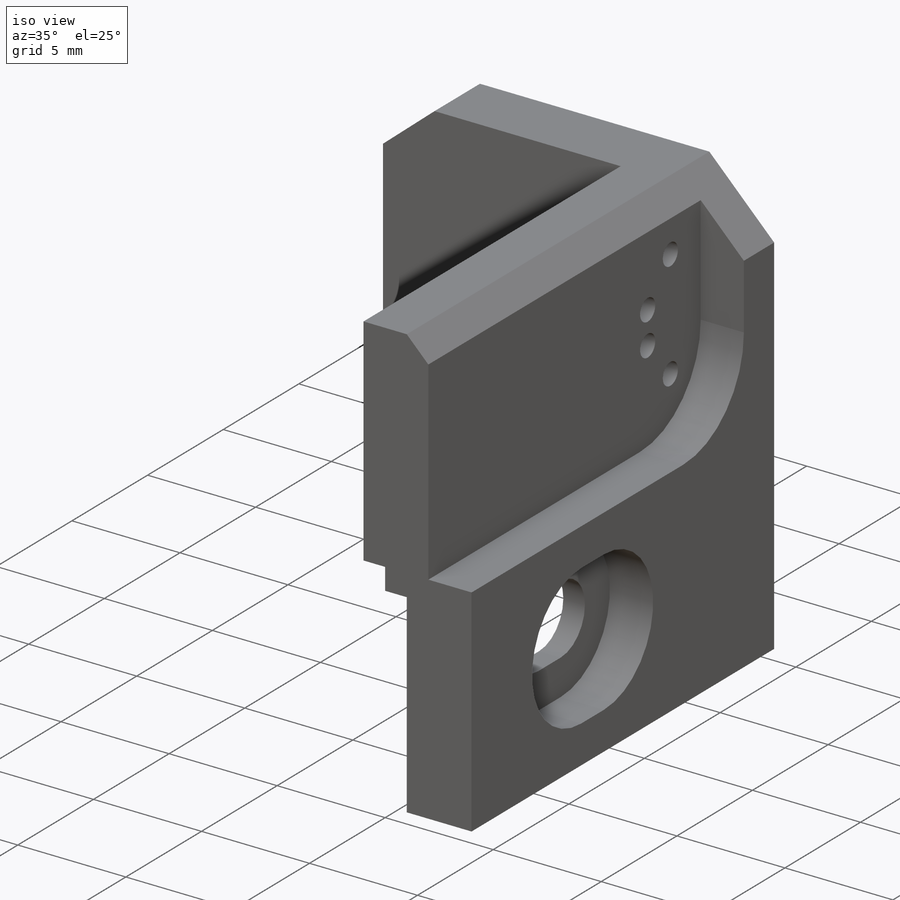
[diagram: iso view]
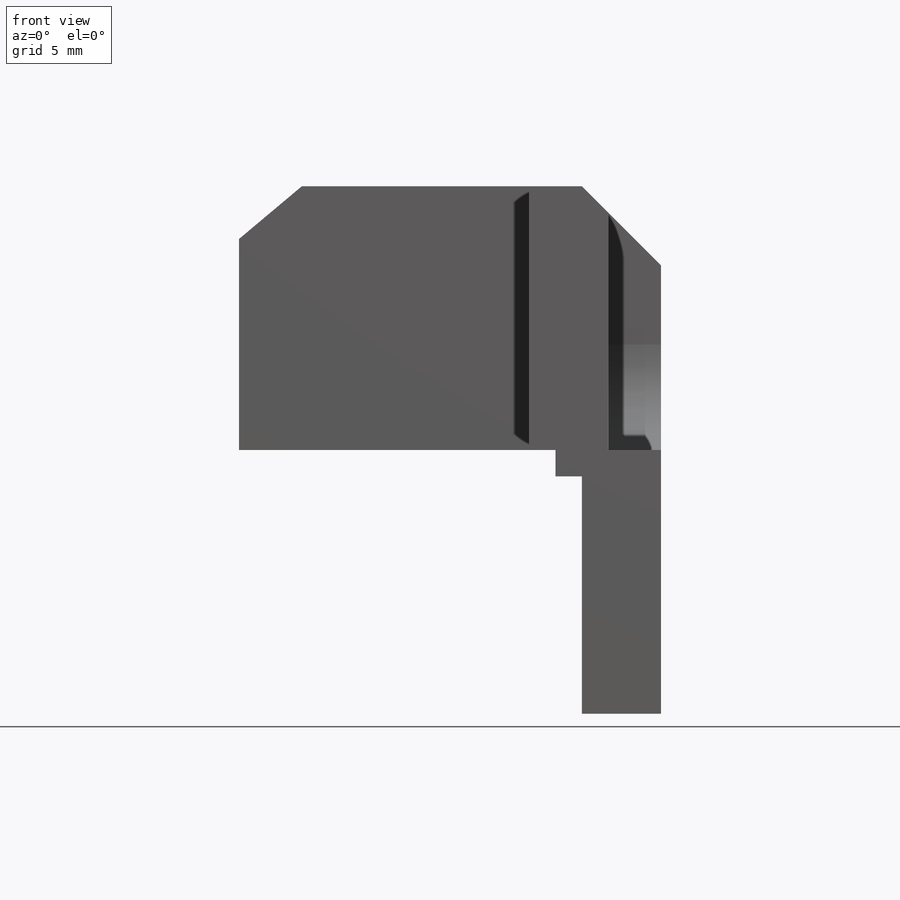
[diagram: front view]
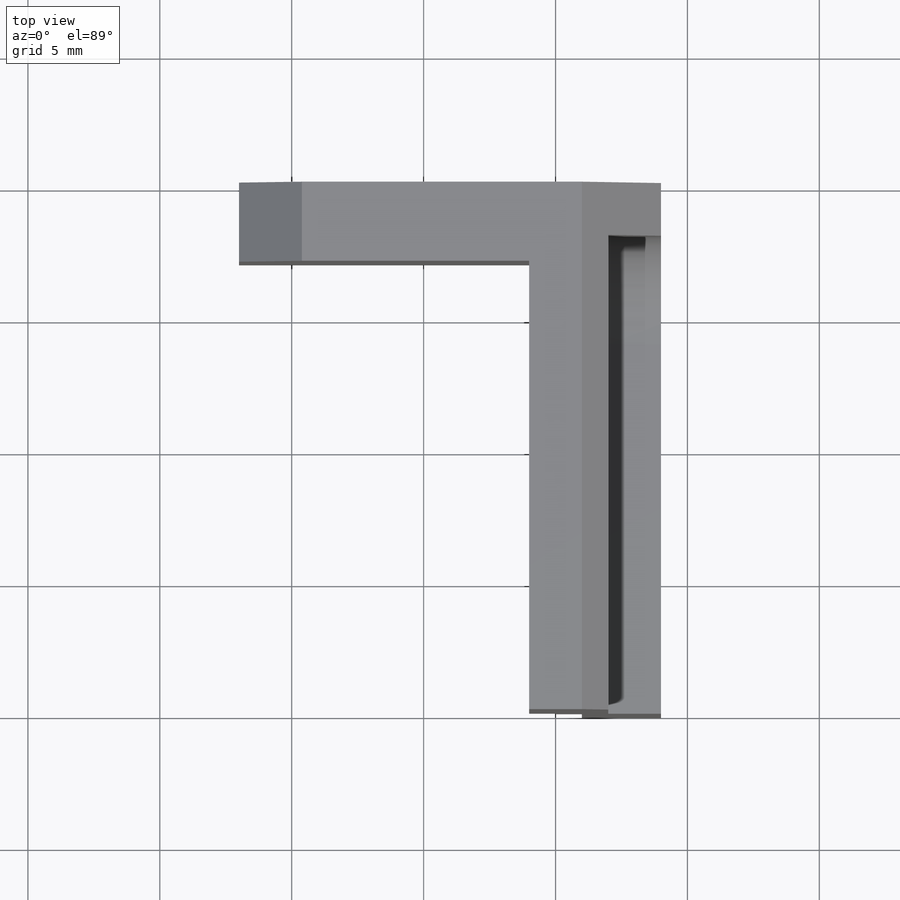
[diagram: top view]
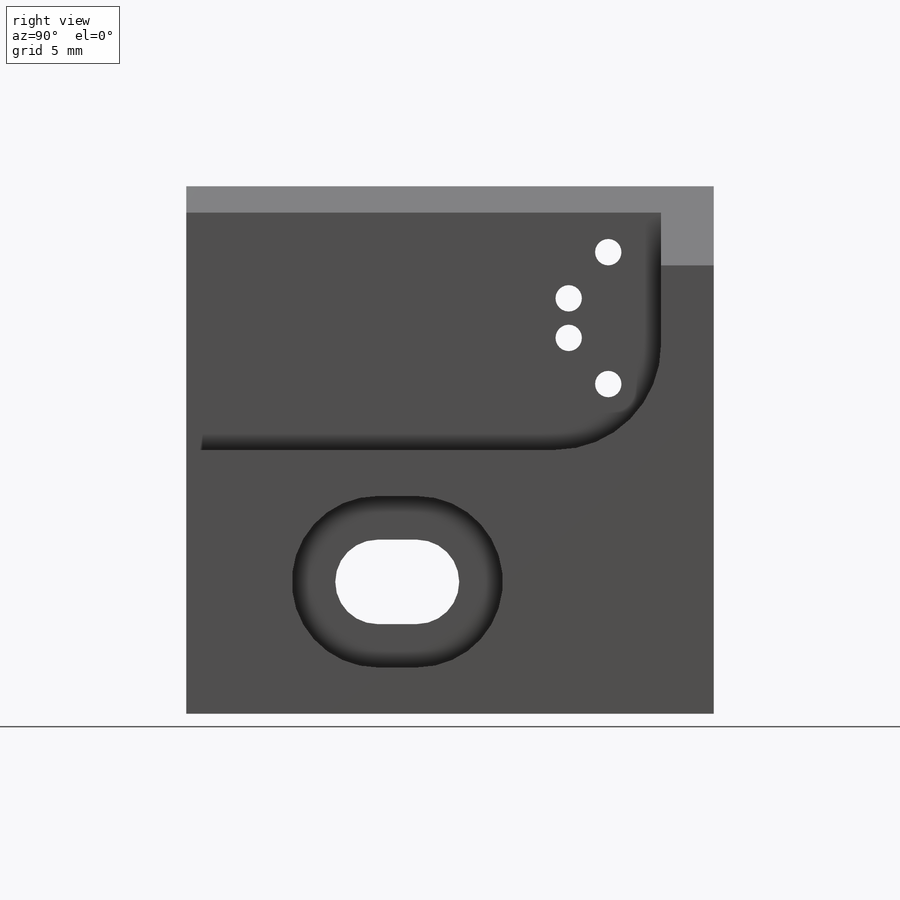
[diagram: right view]
SOLIDWORKS PART (.sldprt)
format: sldprt  version: not decoded by parser v0  size: 287,744 bytes
history: native  units: mm
features: sketch x6, cut_extrude x5, plane x3, chamfer x2, material x1, extrude x1 (+13 scaffold rows collapsed)
feature tree (31):
  scaffold x13  (default folders/planes/origin — collapsed)
  material  "2024-T3"
  plane  "Спереди"
  plane  "Сверху"
  plane  "Справа"
  sketch  "Эскиз1"  dims[D1=1.0mm D2=3.0mm D3=16.0mm D4=10.0mm D5=1.0mm D6=9.0mm]
  extrude  "Бобышка-Вытянуть1"  Depth=20mm
  sketch  "Эскиз2"  dims[D1=3.0mm D2=2.0mm]
  cut_extrude  "Вырез-Вытянуть1"  Depth=2mm
  sketch  "Эскиз3"  dims[c1.D2=1.6mm c1.D3=1.6mm c1.D4=1.6mm c1.D1=3.2mm c2.D2=0.2mm c2.D3=~0.212315mm c3.D3=~0.644165mm c4.D3=~0.202772mm c4.D2=4.0mm c5.D3=9.0mm c5.D4=1.5mm c6.D3=12.0mm c6.D5=1.65mm]
  cut_extrude  "Вырез-Вытянуть2"  [1 undecoded]
  chamfer  "Фаска1"  Distance=3mm Angle=45deg
  chamfer  "Фаска2"  Distance=2mm Angle=50deg
  cut_extrude  "Вырез-Вытянуть3"  [1 undecoded]
  sketch  "Эскиз3<3>"  dims[D1=2.0mm]
  sketch  "Эскиз4"  dims[c1.D3=4.0mm c1.D1=8.0mm c1.D2=1.0mm c2.D3=3.0mm c2.D1=1.0mm]
  cut_extrude  "Вырез-Вытянуть4"  Depth=2mm
  sketch  "Эскиз5"  dims[c1.D1=~0.809855mm c1.D2=~0.809855mm c1.D3=~0.809855mm c1.D6=1.0mm c2.D1=1.0mm c2.D3=1.0mm c2.D7=1.0mm c3.D1=1.5mm c3.D2=1.5mm c3.D3=1.5mm c3.D4=3.5mm c3.D5=1.0mm c4.D1=2.5mm c4.D3=5.0mm c4.D7=1.75mm]
  cut_extrude  "Вырез-Вытянуть5"  [1 undecoded]
decode coverage: 11 of 14 modeling features carry decoded parameters
note: ~ marks probable driven/reference dimensions
note: 3 parameter values undecoded
summary: no parameter record found for 3 features
note: suppression state not decoded; provenance and decode notes live in map.json
